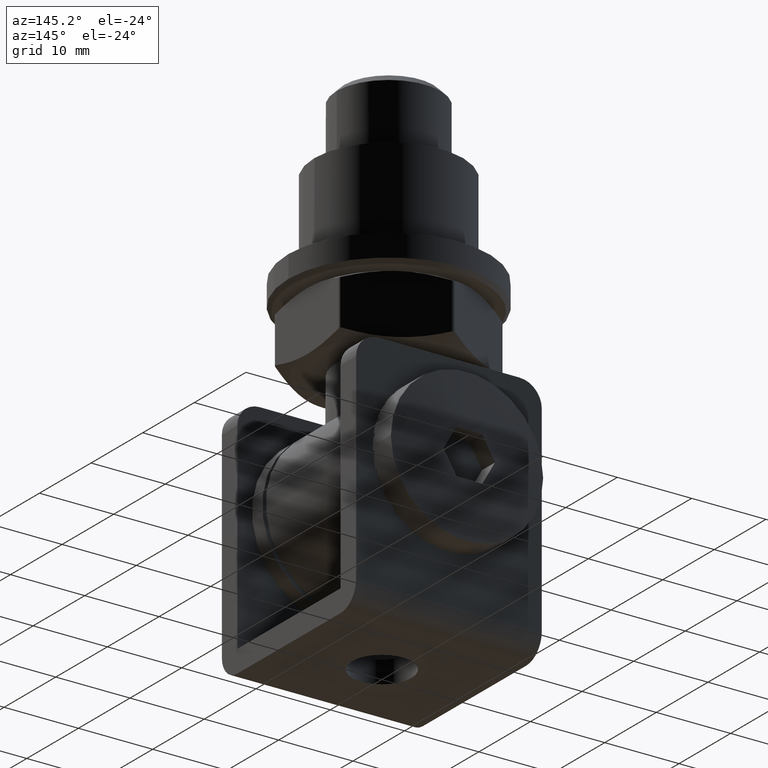
[diagram: clean part render]
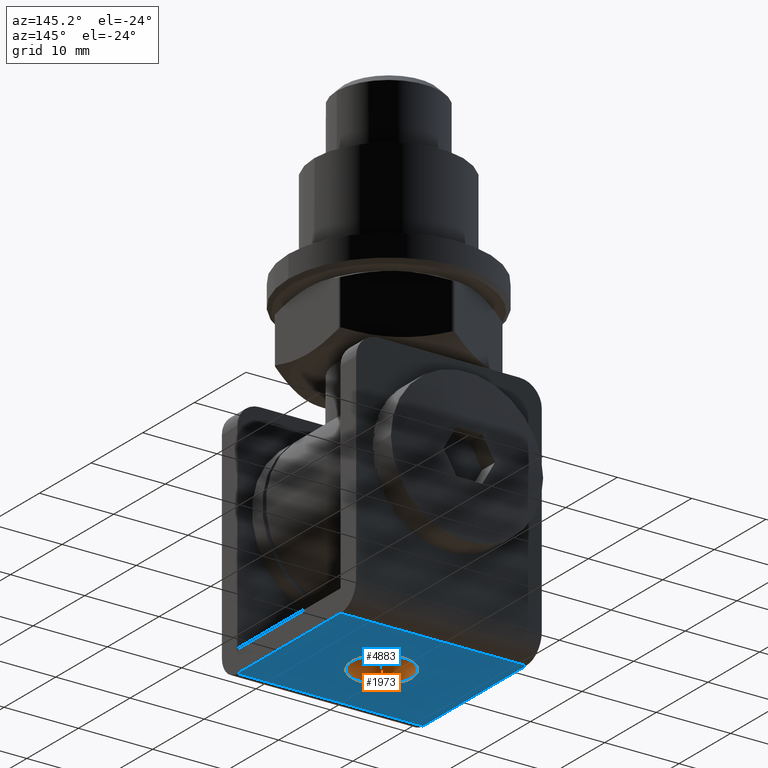
[diagram: same view with the hole feature highlighted: cylindrical wall and planar end face, labeled with their STEP entity ids]
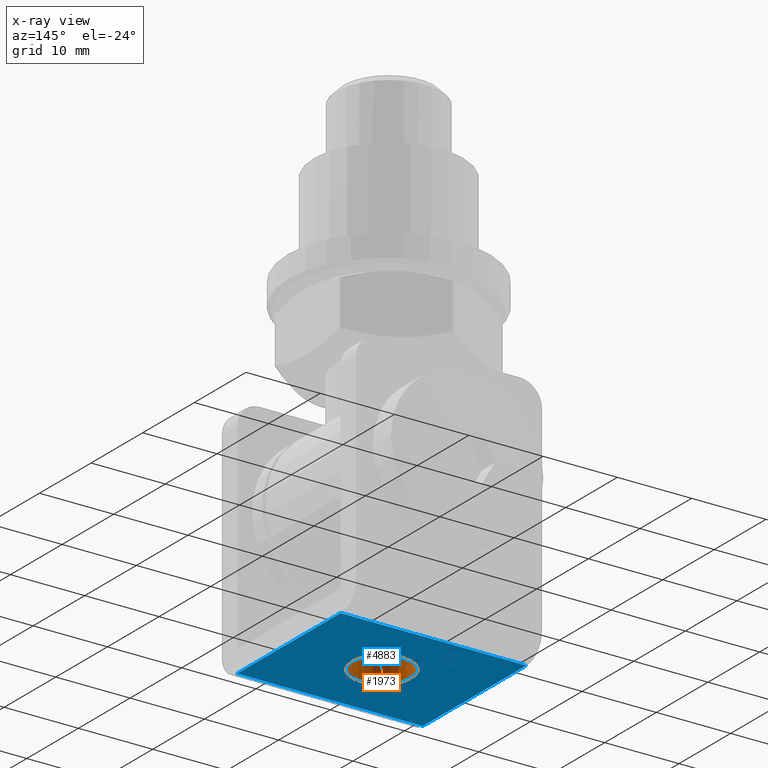
[diagram: x-ray of the same camera — body ghosted, the hole faces saturated]
A machine part, auxiliary view. The highlighted faces form one hole feature of diameter 8 mm: the cylindrical wall (entity #1973, orange) and its adjacent planar end face (entity #4883, blue) — they share a circular edge in the B-rep.
The next image is the same camera in x-ray (body ghosted, the hole faces saturated) — the bore reads through the body.
Wall:
#184 = DIRECTION ( 'NONE',  ( 1.000000000000000000, 0.000000000000000000, 0.000000000000000000 ) ) ;
#1207 = VERTEX_POINT ( 'NONE', #8427 ) ;
#1555 = AXIS2_PLACEMENT_3D ( 'NONE', #16913, #8329, #184 ) ;
#1973 = ADVANCED_FACE ( 'NONE', ( #13680, #7778 ), #2161, .F. ) ;
#2161 = CYLINDRICAL_SURFACE ( 'NONE', #1555, 4.000000000000000000 ) ;
#2246 = DIRECTION ( 'NONE',  ( 1.000000000000000000, 0.000000000000000000, 0.000000000000000000 ) ) ;
#7204 = AXIS2_PLACEMENT_3D ( 'NONE', #15218, #18680, #2246 ) ;
#7618 = DIRECTION ( 'NONE',  ( 0.000000000000000000, 0.000000000000000000, 1.000000000000000000 ) ) ;
#7778 = FACE_OUTER_BOUND ( 'NONE', #15789, .T. ) ;
#8105 = VERTEX_POINT ( 'NONE', #8542 ) ;
#8329 = DIRECTION ( 'NONE',  ( -0.000000000000000000, -0.000000000000000000, 1.000000000000000000 ) ) ;
#8427 = CARTESIAN_POINT ( 'NONE',  ( 4.000000000000000000, 0.000000000000000000, -14.99999999999999645 ) ) ;
#8542 = CARTESIAN_POINT ( 'NONE',  ( 4.000000000000000000, 0.000000000000000000, -18.00000000000000355 ) ) ;
#9401 = CARTESIAN_POINT ( 'NONE',  ( 0.000000000000000000, 0.000000000000000000, -18.00000000000000355 ) ) ;
#11180 = DIRECTION ( 'NONE',  ( 1.000000000000000000, 0.000000000000000000, 0.000000000000000000 ) ) ;
#11487 = AXIS2_PLACEMENT_3D ( 'NONE', #9401, #7618, #11180 ) ;
#13333 = EDGE_LOOP ( 'NONE', ( #20552 ) ) ;
#13384 = CIRCLE ( 'NONE', #11487, 4.000000000000000000 ) ;
#13386 = EDGE_CURVE ( 'NONE', #1207, #1207, #14129, .T. ) ;
#13680 = FACE_OUTER_BOUND ( 'NONE', #13333, .T. ) ;
#14129 = CIRCLE ( 'NONE', #7204, 4.000000000000000000 ) ;
#15218 = CARTESIAN_POINT ( 'NONE',  ( 0.000000000000000000, 0.000000000000000000, -14.99999999999999645 ) ) ;
#15789 = EDGE_LOOP ( 'NONE', ( #17589 ) ) ;
#16913 = CARTESIAN_POINT ( 'NONE',  ( 0.000000000000000000, 0.000000000000000000, -18.00000000000000355 ) ) ;
#17074 = EDGE_CURVE ( 'NONE', #8105, #8105, #13384, .T. ) ;
#17589 = ORIENTED_EDGE ( 'NONE', *, *, #13386, .T. ) ;
#18680 = DIRECTION ( 'NONE',  ( 0.000000000000000000, 0.000000000000000000, 1.000000000000000000 ) ) ;
#20552 = ORIENTED_EDGE ( 'NONE', *, *, #17074, .F. ) ;
End face:
#288 = EDGE_LOOP ( 'NONE', ( #3611 ) ) ;
#375 = ORIENTED_EDGE ( 'NONE', *, *, #13584, .F. ) ;
#1078 = LINE ( 'NONE', #19435, #8978 ) ;
#1830 = VERTEX_POINT ( 'NONE', #6356 ) ;
#2604 = CARTESIAN_POINT ( 'NONE',  ( 12.50000000000000000, -9.999999999999998224, -18.00000000000000355 ) ) ;
#2656 = CARTESIAN_POINT ( 'NONE',  ( 12.50000000000000000, 13.00000000000000178, -17.99999999999999645 ) ) ;
#3243 = CARTESIAN_POINT ( 'NONE',  ( 12.50000000000000000, 10.00000000000000178, -17.99999999999999645 ) ) ;
#3281 = CARTESIAN_POINT ( 'NONE',  ( 12.50000000000000000, 10.00000000000000178, -17.99999999999999645 ) ) ;
#3611 = ORIENTED_EDGE ( 'NONE', *, *, #17074, .T. ) ;
#3696 = DIRECTION ( 'NONE',  ( -0.000000000000000000, 1.000000000000000000, 2.668805347656626678E-16 ) ) ;
#4621 = DIRECTION ( 'NONE',  ( 1.000000000000000000, -0.000000000000000000, -0.000000000000000000 ) ) ;
#4883 = ADVANCED_FACE ( 'NONE', ( #11138, #13965 ), #7509, .F. ) ;
#4956 = EDGE_CURVE ( 'NONE', #20128, #7896, #20351, .T. ) ;
#5382 = EDGE_CURVE ( 'NONE', #1830, #18996, #19844, .T. ) ;
#5867 = ORIENTED_EDGE ( 'NONE', *, *, #13273, .T. ) ;
#5968 = VECTOR ( 'NONE', #3696, 1000.000000000000000 ) ;
#6100 = ORIENTED_EDGE ( 'NONE', *, *, #4956, .T. ) ;
#6222 = DIRECTION ( 'NONE',  ( -0.000000000000000000, 1.000000000000000000, 2.668805347656626678E-16 ) ) ;
#6356 = CARTESIAN_POINT ( 'NONE',  ( -12.50000000000000000, 10.00000000000000178, -17.99999999999999645 ) ) ;
#7169 = AXIS2_PLACEMENT_3D ( 'NONE', #2656, #17305, #12455 ) ;
#7509 = PLANE ( 'NONE',  #7169 ) ;
#7618 = DIRECTION ( 'NONE',  ( 0.000000000000000000, 0.000000000000000000, 1.000000000000000000 ) ) ;
#7896 = VERTEX_POINT ( 'NONE', #15762 ) ;
#8088 = CARTESIAN_POINT ( 'NONE',  ( -12.50000000000000000, 13.00000000000000178, -17.99999999999999645 ) ) ;
#8105 = VERTEX_POINT ( 'NONE', #8542 ) ;
#8542 = CARTESIAN_POINT ( 'NONE',  ( 4.000000000000000000, 0.000000000000000000, -18.00000000000000355 ) ) ;
#8978 = VECTOR ( 'NONE', #6222, 1000.000000000000000 ) ;
#9118 = VECTOR ( 'NONE', #15816, 1000.000000000000000 ) ;
#9401 = CARTESIAN_POINT ( 'NONE',  ( 0.000000000000000000, 0.000000000000000000, -18.00000000000000355 ) ) ;
#10460 = CARTESIAN_POINT ( 'NONE',  ( 12.50000000000000000, -9.999999999999991118, -18.00000000000000355 ) ) ;
#11138 = FACE_BOUND ( 'NONE', #288, .T. ) ;
#11180 = DIRECTION ( 'NONE',  ( 1.000000000000000000, 0.000000000000000000, 0.000000000000000000 ) ) ;
#11487 = AXIS2_PLACEMENT_3D ( 'NONE', #9401, #7618, #11180 ) ;
#12077 = LINE ( 'NONE', #8088, #5968 ) ;
#12455 = DIRECTION ( 'NONE',  ( 0.000000000000000000, -1.000000000000000000, -2.668805347656626678E-16 ) ) ;
#13273 = EDGE_CURVE ( 'NONE', #7896, #1830, #12077, .T. ) ;
#13384 = CIRCLE ( 'NONE', #11487, 4.000000000000000000 ) ;
#13584 = EDGE_CURVE ( 'NONE', #20128, #18996, #1078, .T. ) ;
#13965 = FACE_OUTER_BOUND ( 'NONE', #17019, .T. ) ;
#15227 = VECTOR ( 'NONE', #4621, 1000.000000000000000 ) ;
#15762 = CARTESIAN_POINT ( 'NONE',  ( -12.50000000000000000, -9.999999999999991118, -18.00000000000000355 ) ) ;
#15816 = DIRECTION ( 'NONE',  ( -1.000000000000000000, 0.000000000000000000, 0.000000000000000000 ) ) ;
#17019 = EDGE_LOOP ( 'NONE', ( #5867, #19591, #375, #6100 ) ) ;
#17074 = EDGE_CURVE ( 'NONE', #8105, #8105, #13384, .T. ) ;
#17305 = DIRECTION ( 'NONE',  ( 0.000000000000000000, -2.668805347656626678E-16, 1.000000000000000000 ) ) ;
#18996 = VERTEX_POINT ( 'NONE', #3281 ) ;
#19435 = CARTESIAN_POINT ( 'NONE',  ( 12.50000000000000000, 13.00000000000000178, -17.99999999999999645 ) ) ;
#19591 = ORIENTED_EDGE ( 'NONE', *, *, #5382, .T. ) ;
#19844 = LINE ( 'NONE', #3243, #15227 ) ;
#20128 = VERTEX_POINT ( 'NONE', #10460 ) ;
#20351 = LINE ( 'NONE', #2604, #9118 ) ;